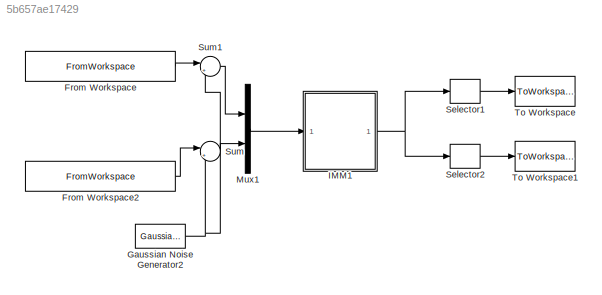
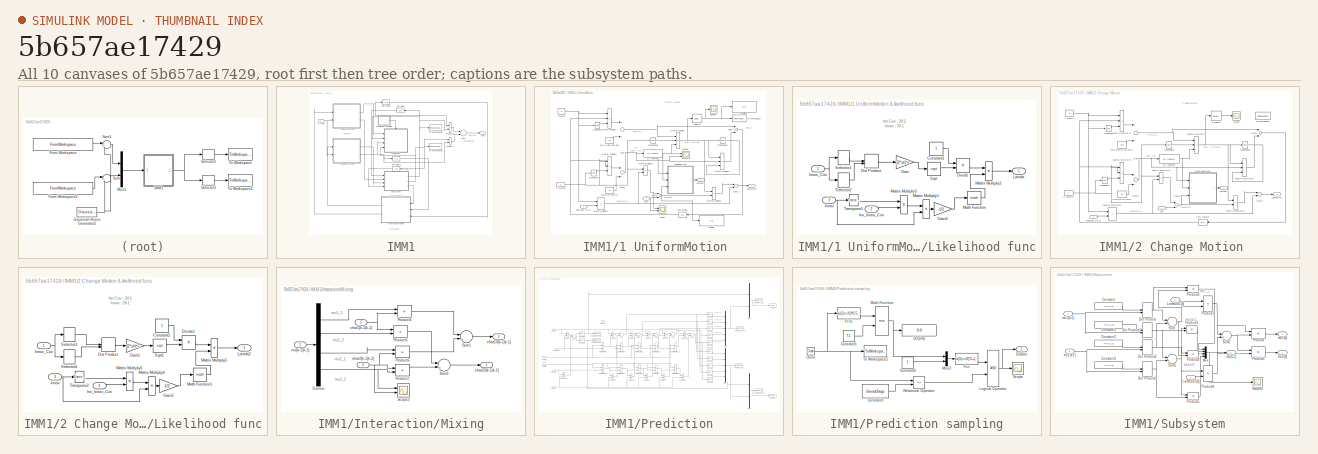
[diagram: thumbnail index - all 10 canvases of the model, root first then tree order]
MODEL slx_5b657ae17429
KIND model
BLOCK [FromWorkspace] From Workspace
  SampleTime = 0
  VariableName = [obv_traj1(:,1),obv_traj1(:,2)]
BLOCK [FromWorkspace] From Workspace2
  SampleTime = 0
  VariableName = [obv_traj1(:,1),obv_traj1(:,3)]
BLOCK [Reference] Gaussian Noise Generator2  REF=commnoisgen2/Gaussian Noise
Generator
  Ports = [0, 1]
  SourceBlock = commnoisgen2/Gaussian Noise\nGenerator
  SourceType = Gaussian Noise Generator
  Ts = 0.05
  d = noise
  frameBased = off
  m = 0
  orient = off
  outDataType = double
  s = 0
  sampPerFrame = 1
BLOCK [SubSystem] IMM1
  FunctionWithSeparateData = off
  MaskHideContents = off
  MinAlgLoopOccurrences = off
  Opaque = off
  Ports = [1, 1]
  PropExecContextOutsideSubsystem = off
  RTWSystemCode = Auto
  RequestExecContextInheritance = off
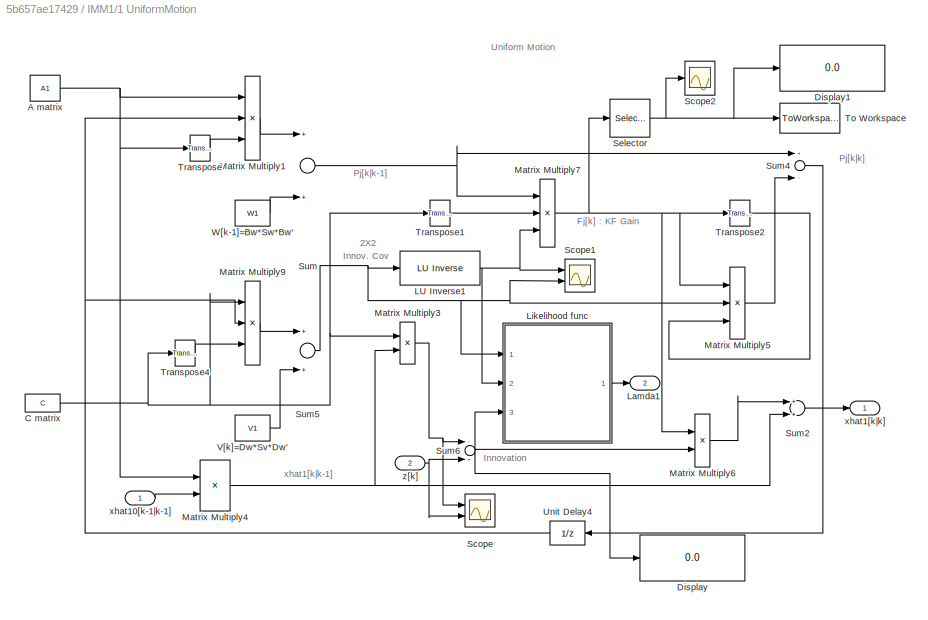
BLOCK [SubSystem] IMM1/1 UniformMotion 
  FunctionWithSeparateData = off
  MaskHideContents = off
  MinAlgLoopOccurrences = off
  Opaque = off
  Ports = [2, 2]
  PropExecContextOutsideSubsystem = off
  RTWSystemCode = Auto
  RequestExecContextInheritance = off
BLOCK [Reference] IMM1/1 UniformMotion / LU Inverse1  REF=dspinverses/ LU Inverse
  Ports = [1, 1]
  SourceBlock = dspinverses/ LU Inverse
  SourceType = LU Inverse
BLOCK [Constant] IMM1/1 UniformMotion /A matrix
  Value = A1
BLOCK [Constant] IMM1/1 UniformMotion /C matrix
  Value = C
BLOCK [Display] IMM1/1 UniformMotion /Display
  Decimation = 1
  Lockdown = off
  Ports = [1]
BLOCK [Display] IMM1/1 UniformMotion /Display1
  Decimation = 1
  Lockdown = off
  Ports = [1]
BLOCK [Outport] IMM1/1 UniformMotion /Lamda1
  IconDisplay = Port number
  Port = 2
BLOCK [SubSystem] IMM1/1 UniformMotion /Likelihood func
  FunctionWithSeparateData = off
  MaskHideContents = off
  MinAlgLoopOccurrences = off
  Opaque = off
  Ports = [3, 1]
  PropExecContextOutsideSubsystem = off
  RTWSystemCode = Auto
  RequestExecContextInheritance = off
BLOCK [Constant] IMM1/1 UniformMotion /Likelihood func/Constant1
BLOCK [Product] IMM1/1 UniformMotion /Likelihood func/Divide
  InputSameDT = off
  Inputs = */
  OutDataTypeStr = Inherit: Inherit via internal rule
  Ports = [2, 1]
  RndMeth = Floor
  SaturateOnIntegerOverflow = off
BLOCK [DotProduct] IMM1/1 UniformMotion /Likelihood func/Dot Product
  OutDataTypeStr = Inherit: Inherit via internal rule
BLOCK [Gain] IMM1/1 UniformMotion /Likelihood func/Gain
  Gain = (2*pi)^2
  OutDataTypeStr = Inherit: Inherit via internal rule
  ParamDataTypeStr = Inherit: Inherit via internal rule
  SaturateOnIntegerOverflow = off
BLOCK [Gain] IMM1/1 UniformMotion /Likelihood func/Gain2
  Gain = -1/2
  OutDataTypeStr = Inherit: Inherit via internal rule
  ParamDataTypeStr = Inherit: Inherit via internal rule
  SaturateOnIntegerOverflow = off
BLOCK [Inport] IMM1/1 UniformMotion /Likelihood func/Innov
  IconDisplay = Port number
  Port = 3
BLOCK [Inport] IMM1/1 UniformMotion /Likelihood func/Innov_Cov
  IconDisplay = Port number
BLOCK [Inport] IMM1/1 UniformMotion /Likelihood func/Inv_Innov_Cov
  IconDisplay = Port number
  Port = 2
BLOCK [Outport] IMM1/1 UniformMotion /Likelihood func/Lamda
  IconDisplay = Port number
BLOCK [Math] IMM1/1 UniformMotion /Likelihood func/Math Function
  Ports = [1, 1]
BLOCK [Product] IMM1/1 UniformMotion /Likelihood func/Matrix Multiply1
  InputSameDT = off
  Multiplication = Matrix(*)
  OutDataTypeStr = Inherit: Inherit via internal rule
  Ports = [2, 1]
  RndMeth = Floor
  SaturateOnIntegerOverflow = off
BLOCK [Product] IMM1/1 UniformMotion /Likelihood func/Matrix Multiply2
  InputSameDT = off
  Multiplication = Matrix(*)
  OutDataTypeStr = Inherit: Inherit via internal rule
  Ports = [2, 1]
  RndMeth = Floor
  SaturateOnIntegerOverflow = off
BLOCK [Product] IMM1/1 UniformMotion /Likelihood func/Matrix Multiply3
  InputSameDT = off
  Multiplication = Matrix(*)
  OutDataTypeStr = Inherit: Inherit via internal rule
  Ports = [2, 1]
  RndMeth = Floor
  SaturateOnIntegerOverflow = off
BLOCK [Selector] IMM1/1 UniformMotion /Likelihood func/Selector1
  IndexOptions = Index vector (dialog),Index vector (dialog)
  Indices = [1],[1]
  InputPortWidth = 4
  NumberOfDimensions = 2
  OutputSizes = 1,1
  Ports = [1, 1]
BLOCK [Selector] IMM1/1 UniformMotion /Likelihood func/Selector2
  IndexOptions = Index vector (dialog),Index vector (dialog)
  Indices = [2],[2]
  InputPortWidth = 4
  NumberOfDimensions = 2
  OutputSizes = 1,1
  Ports = [1, 1]
BLOCK [Sqrt] IMM1/1 UniformMotion /Likelihood func/Sqrt
BLOCK [Reference] IMM1/1 UniformMotion /Likelihood func/Transpose1  REF=dspmtrx3/Transpose
  Hermitian = off
  Ports = [1, 1]
  SourceBlock = dspmtrx3/Transpose
  SourceType = Transpose
  overflowFlag = off
BLOCK [Product] IMM1/1 UniformMotion /Matrix Multiply1
  InputSameDT = off
  Inputs = 3
  Multiplication = Matrix(*)
  OutDataTypeStr = Inherit: Inherit via internal rule
  Ports = [3, 1]
  RndMeth = Floor
  SaturateOnIntegerOverflow = off
BLOCK [Product] IMM1/1 UniformMotion /Matrix Multiply3
  InputSameDT = off
  Multiplication = Matrix(*)
  OutDataTypeStr = Inherit: Inherit via internal rule
  Ports = [2, 1]
  RndMeth = Floor
  SaturateOnIntegerOverflow = off
BLOCK [Product] IMM1/1 UniformMotion /Matrix Multiply4
  InputSameDT = off
  Multiplication = Matrix(*)
  OutDataTypeStr = Inherit: Inherit via internal rule
  Ports = [2, 1]
  RndMeth = Floor
  SaturateOnIntegerOverflow = off
BLOCK [Product] IMM1/1 UniformMotion /Matrix Multiply5
  InputSameDT = off
  Inputs = 3
  Multiplication = Matrix(*)
  OutDataTypeStr = Inherit: Inherit via internal rule
  Ports = [3, 1]
  RndMeth = Floor
  SaturateOnIntegerOverflow = off
BLOCK [Product] IMM1/1 UniformMotion /Matrix Multiply6
  InputSameDT = off
  Multiplication = Matrix(*)
  OutDataTypeStr = Inherit: Inherit via internal rule
  Ports = [2, 1]
  RndMeth = Floor
  SaturateOnIntegerOverflow = off
BLOCK [Product] IMM1/1 UniformMotion /Matrix Multiply7
  InputSameDT = off
  Inputs = 3
  Multiplication = Matrix(*)
  OutDataTypeStr = Inherit: Inherit via internal rule
  Ports = [3, 1]
  RndMeth = Floor
  SaturateOnIntegerOverflow = off
BLOCK [Product] IMM1/1 UniformMotion /Matrix Multiply9
  InputSameDT = off
  Inputs = 3
  Multiplication = Matrix(*)
  OutDataTypeStr = Inherit: Inherit via internal rule
  Ports = [3, 1]
  RndMeth = Floor
  SaturateOnIntegerOverflow = off
BLOCK [Scope] IMM1/1 UniformMotion /Scope
  DataFormat = StructureWithTime
  Floating = off
  NumInputPorts = 2
  Ports = [2]
  SampleTime = 0
  SaveName = ScopeData10
  ShowLegends = off
  YMax = 5~20
  YMin = -5~5
BLOCK [Scope] IMM1/1 UniformMotion /Scope1
  DataFormat = StructureWithTime
  Floating = off
  NumInputPorts = 2
  Ports = [2]
  SampleTime = 0
  SaveName = ScopeData11
  ShowLegends = off
  YMax = 0.0015~3e+301
  YMin = -0.00025~-5e+300
BLOCK [Scope] IMM1/1 UniformMotion /Scope2
  DataFormat = StructureWithTime
  Floating = off
  NumInputPorts = 1
  Ports = [1]
  SampleTime = 0
  SaveName = ScopeData4
  ShowLegends = off
BLOCK [Selector] IMM1/1 UniformMotion /Selector
  IndexOptions = Index vector (dialog),Index vector (dialog)
  Indices = 1,1
  InputPortWidth = 3
  NumberOfDimensions = 2
  OutputSizes = 1,1
  Ports = [1, 1]
BLOCK [Sum] IMM1/1 UniformMotion /Sum
  InputSameDT = off
  OutDataTypeStr = Inherit: Inherit via internal rule
  Ports = [2, 1]
BLOCK [Sum] IMM1/1 UniformMotion /Sum2
  InputSameDT = off
  OutDataTypeStr = Inherit: Inherit via internal rule
  Ports = [2, 1]
BLOCK [Sum] IMM1/1 UniformMotion /Sum4
  InputSameDT = off
  Inputs = +-
  OutDataTypeStr = Inherit: Inherit via internal rule
  Ports = [2, 1]
BLOCK [Sum] IMM1/1 UniformMotion /Sum5
  InputSameDT = off
  OutDataTypeStr = Inherit: Inherit via internal rule
  Ports = [2, 1]
BLOCK [Sum] IMM1/1 UniformMotion /Sum6
  InputSameDT = off
  Inputs = -+
  OutDataTypeStr = Inherit: Inherit via internal rule
  Ports = [2, 1]
BLOCK [ToWorkspace] IMM1/1 UniformMotion /To Workspace
  MaxDataPoints = inf
  Ports = [1]
  SampleTime = -1
  VariableName = KFgain1
BLOCK [Reference] IMM1/1 UniformMotion /Transpose  REF=dspmtrx3/Transpose
  Hermitian = off
  Ports = [1, 1]
  SourceBlock = dspmtrx3/Transpose
  SourceType = Transpose
  overflowFlag = off
BLOCK [Reference] IMM1/1 UniformMotion /Transpose1  REF=dspmtrx3/Transpose
  Hermitian = off
  Ports = [1, 1]
  SourceBlock = dspmtrx3/Transpose
  SourceType = Transpose
  overflowFlag = off
BLOCK [Reference] IMM1/1 UniformMotion /Transpose2  REF=dspmtrx3/Transpose
  Hermitian = off
  Ports = [1, 1]
  SourceBlock = dspmtrx3/Transpose
  SourceType = Transpose
  overflowFlag = off
BLOCK [Reference] IMM1/1 UniformMotion /Transpose4  REF=dspmtrx3/Transpose
  Hermitian = off
  Ports = [1, 1]
  SourceBlock = dspmtrx3/Transpose
  SourceType = Transpose
  overflowFlag = off
BLOCK [UnitDelay] IMM1/1 UniformMotion /Unit Delay4
  InitialCondition = P_init
  SampleTime = -1
BLOCK [Constant] IMM1/1 UniformMotion /V[k]=Dw*Sv*Dw'
  Value = V1
BLOCK [Constant] IMM1/1 UniformMotion /W[k-1]=Bw*Sw*Bw' 
  Value = W1
BLOCK [Inport] IMM1/1 UniformMotion /xhat10[k-1|k-1]
  IconDisplay = Port number
BLOCK [Outport] IMM1/1 UniformMotion /xhat1[k|k]
  IconDisplay = Port number
BLOCK [Inport] IMM1/1 UniformMotion /z[k]
  IconDisplay = Port number
  Port = 2
BLOCK [SubSystem] IMM1/2 Change Motion 
  FunctionWithSeparateData = off
  MaskHideContents = off
  MinAlgLoopOccurrences = off
  Opaque = off
  Ports = [2, 2]
  PropExecContextOutsideSubsystem = off
  RTWSystemCode = Auto
  RequestExecContextInheritance = off
BLOCK [Reference] IMM1/2 Change Motion / LU Inverse1  REF=dspinverses/ LU Inverse
  Ports = [1, 1]
  SourceBlock = dspinverses/ LU Inverse
  SourceType = LU Inverse
BLOCK [Constant] IMM1/2 Change Motion /A matrix
  Value = A2
BLOCK [Constant] IMM1/2 Change Motion /C matrix
  Value = C
BLOCK [Outport] IMM1/2 Change Motion /Lamda2
  IconDisplay = Port number
BLOCK [SubSystem] IMM1/2 Change Motion /Likelihood func
  FunctionWithSeparateData = off
  MaskHideContents = off
  MinAlgLoopOccurrences = off
  Opaque = off
  Ports = [3, 1]
  PropExecContextOutsideSubsystem = off
  RTWSystemCode = Auto
  RequestExecContextInheritance = off
BLOCK [Constant] IMM1/2 Change Motion /Likelihood func/Constant2
BLOCK [Product] IMM1/2 Change Motion /Likelihood func/Divide1
  InputSameDT = off
  Inputs = */
  OutDataTypeStr = Inherit: Inherit via internal rule
  Ports = [2, 1]
  RndMeth = Floor
  SaturateOnIntegerOverflow = off
BLOCK [DotProduct] IMM1/2 Change Motion /Likelihood func/Dot Product
  OutDataTypeStr = Inherit: Inherit via internal rule
BLOCK [Gain] IMM1/2 Change Motion /Likelihood func/Gain1
  Gain = (2*pi)^2
  OutDataTypeStr = Inherit: Inherit via internal rule
  ParamDataTypeStr = Inherit: Inherit via internal rule
  SaturateOnIntegerOverflow = off
BLOCK [Gain] IMM1/2 Change Motion /Likelihood func/Gain3
  Gain = -1/2
  OutDataTypeStr = Inherit: Inherit via internal rule
  ParamDataTypeStr = Inherit: Inherit via internal rule
  SaturateOnIntegerOverflow = off
BLOCK [Inport] IMM1/2 Change Motion /Likelihood func/Innov
  IconDisplay = Port number
  Port = 3
BLOCK [Inport] IMM1/2 Change Motion /Likelihood func/Innov_Cov
  IconDisplay = Port number
BLOCK [Inport] IMM1/2 Change Motion /Likelihood func/Inv_Innov_Cov
  IconDisplay = Port number
  Port = 2
BLOCK [Outport] IMM1/2 Change Motion /Likelihood func/Lamda2
  IconDisplay = Port number
BLOCK [Math] IMM1/2 Change Motion /Likelihood func/Math Function1
  Ports = [1, 1]
BLOCK [Product] IMM1/2 Change Motion /Likelihood func/Matrix Multiply4
  InputSameDT = off
  Multiplication = Matrix(*)
  OutDataTypeStr = Inherit: Inherit via internal rule
  Ports = [2, 1]
  RndMeth = Floor
  SaturateOnIntegerOverflow = off
BLOCK [Product] IMM1/2 Change Motion /Likelihood func/Matrix Multiply5
  InputSameDT = off
  Multiplication = Matrix(*)
  OutDataTypeStr = Inherit: Inherit via internal rule
  Ports = [2, 1]
  RndMeth = Floor
  SaturateOnIntegerOverflow = off
BLOCK [Product] IMM1/2 Change Motion /Likelihood func/Matrix Multiply6
  InputSameDT = off
  Multiplication = Matrix(*)
  OutDataTypeStr = Inherit: Inherit via internal rule
  Ports = [2, 1]
  RndMeth = Floor
  SaturateOnIntegerOverflow = off
BLOCK [Selector] IMM1/2 Change Motion /Likelihood func/Selector3
  IndexOptions = Index vector (dialog),Index vector (dialog)
  Indices = [1],[1]
  InputPortWidth = 4
  NumberOfDimensions = 2
  OutputSizes = 1,1
  Ports = [1, 1]
BLOCK [Selector] IMM1/2 Change Motion /Likelihood func/Selector4
  IndexOptions = Index vector (dialog),Index vector (dialog)
  Indices = [2],[2]
  InputPortWidth = 4
  NumberOfDimensions = 2
  OutputSizes = 1,1
  Ports = [1, 1]
BLOCK [Sqrt] IMM1/2 Change Motion /Likelihood func/Sqrt1
BLOCK [Reference] IMM1/2 Change Motion /Likelihood func/Transpose2  REF=dspmtrx3/Transpose
  Hermitian = off
  Ports = [1, 1]
  SourceBlock = dspmtrx3/Transpose
  SourceType = Transpose
  overflowFlag = off
BLOCK [Product] IMM1/2 Change Motion /Matrix Multiply1
  InputSameDT = off
  Inputs = 3
  Multiplication = Matrix(*)
  OutDataTypeStr = Inherit: Inherit via internal rule
  Ports = [3, 1]
  RndMeth = Floor
  SaturateOnIntegerOverflow = off
BLOCK [Product] IMM1/2 Change Motion /Matrix Multiply3
  InputSameDT = off
  Multiplication = Matrix(*)
  OutDataTypeStr = Inherit: Inherit via internal rule
  Ports = [2, 1]
  RndMeth = Floor
  SaturateOnIntegerOverflow = off
BLOCK [Product] IMM1/2 Change Motion /Matrix Multiply4
  InputSameDT = off
  Multiplication = Matrix(*)
  OutDataTypeStr = Inherit: Inherit via internal rule
  Ports = [2, 1]
  RndMeth = Floor
  SaturateOnIntegerOverflow = off
BLOCK [Product] IMM1/2 Change Motion /Matrix Multiply5
  InputSameDT = off
  Inputs = 3
  Multiplication = Matrix(*)
  OutDataTypeStr = Inherit: Inherit via internal rule
  Ports = [3, 1]
  RndMeth = Floor
  SaturateOnIntegerOverflow = off
BLOCK [Product] IMM1/2 Change Motion /Matrix Multiply6
  InputSameDT = off
  Multiplication = Matrix(*)
  OutDataTypeStr = Inherit: Inherit via internal rule
  Ports = [2, 1]
  RndMeth = Floor
  SaturateOnIntegerOverflow = off
BLOCK [Product] IMM1/2 Change Motion /Matrix Multiply7
  InputSameDT = off
  Inputs = 3
  Multiplication = Matrix(*)
  OutDataTypeStr = Inherit: Inherit via internal rule
  Ports = [3, 1]
  RndMeth = Floor
  SaturateOnIntegerOverflow = off
BLOCK [Product] IMM1/2 Change Motion /Matrix Multiply9
  InputSameDT = off
  Inputs = 3
  Multiplication = Matrix(*)
  OutDataTypeStr = Inherit: Inherit via internal rule
  Ports = [3, 1]
  RndMeth = Floor
  SaturateOnIntegerOverflow = off
BLOCK [Scope] IMM1/2 Change Motion /Scope
  DataFormat = StructureWithTime
  Floating = off
  NumInputPorts = 1
  Ports = [1]
  SampleTime = 0
  SaveName = ScopeData3
  ShowLegends = off
BLOCK [Selector] IMM1/2 Change Motion /Selector
  IndexOptions = Index vector (dialog),Index vector (dialog)
  Indices = 1,1
  InputPortWidth = 3
  NumberOfDimensions = 2
  OutputSizes = 1,1
  Ports = [1, 1]
BLOCK [Sum] IMM1/2 Change Motion /Sum
  InputSameDT = off
  OutDataTypeStr = Inherit: Inherit via internal rule
  Ports = [2, 1]
BLOCK [Sum] IMM1/2 Change Motion /Sum2
  InputSameDT = off
  OutDataTypeStr = Inherit: Inherit via internal rule
  Ports = [2, 1]
BLOCK [Sum] IMM1/2 Change Motion /Sum4
  InputSameDT = off
  Inputs = +-
  OutDataTypeStr = Inherit: Inherit via internal rule
  Ports = [2, 1]
BLOCK [Sum] IMM1/2 Change Motion /Sum5
  InputSameDT = off
  OutDataTypeStr = Inherit: Inherit via internal rule
  Ports = [2, 1]
BLOCK [Sum] IMM1/2 Change Motion /Sum6
  InputSameDT = off
  Inputs = -+
  OutDataTypeStr = Inherit: Inherit via internal rule
  Ports = [2, 1]
BLOCK [ToWorkspace] IMM1/2 Change Motion /To Workspace
  MaxDataPoints = inf
  Ports = [1]
  SampleTime = -1
  VariableName = KFgain2
BLOCK [Reference] IMM1/2 Change Motion /Transpose  REF=dspmtrx3/Transpose
  Hermitian = off
  Ports = [1, 1]
  SourceBlock = dspmtrx3/Transpose
  SourceType = Transpose
  overflowFlag = off
BLOCK [Reference] IMM1/2 Change Motion /Transpose1  REF=dspmtrx3/Transpose
  Hermitian = off
  Ports = [1, 1]
  SourceBlock = dspmtrx3/Transpose
  SourceType = Transpose
  overflowFlag = off
BLOCK [Reference] IMM1/2 Change Motion /Transpose2  REF=dspmtrx3/Transpose
  Hermitian = off
  Ports = [1, 1]
  SourceBlock = dspmtrx3/Transpose
  SourceType = Transpose
  overflowFlag = off
BLOCK [Reference] IMM1/2 Change Motion /Transpose4  REF=dspmtrx3/Transpose
  Hermitian = off
  Ports = [1, 1]
  SourceBlock = dspmtrx3/Transpose
  SourceType = Transpose
  overflowFlag = off
BLOCK [UnitDelay] IMM1/2 Change Motion /Unit Delay4
  InitialCondition = P_init
  SampleTime = -1
BLOCK [Constant] IMM1/2 Change Motion /V[k]=Dw*Sv*Dw'
  Value = V2
BLOCK [Constant] IMM1/2 Change Motion /W[k-1]=Bw*Sw*Bw' 
  Value = W2
BLOCK [Inport] IMM1/2 Change Motion /xhat20[k-1|k-1]
  IconDisplay = Port number
BLOCK [Outport] IMM1/2 Change Motion /xhat2[k|k]
  IconDisplay = Port number
  Port = 2
BLOCK [Inport] IMM1/2 Change Motion /z[k]
  IconDisplay = Port number
  Port = 2
BLOCK [SubSystem] IMM1/Interaction//Mixing
  FunctionWithSeparateData = off
  MaskHideContents = off
  MinAlgLoopOccurrences = off
  Opaque = off
  Ports = [3, 2]
  PropExecContextOutsideSubsystem = off
  RTWSystemCode = Auto
  RequestExecContextInheritance = off
BLOCK [Demux] IMM1/Interaction//Mixing/Demux
  Ports = [1, 4]
BLOCK [Product] IMM1/Interaction//Mixing/Product4
  InputSameDT = off
  Ports = [2, 1]
  RndMeth = Floor
BLOCK [Product] IMM1/Interaction//Mixing/Product5
  InputSameDT = off
  Ports = [2, 1]
  RndMeth = Floor
BLOCK [Product] IMM1/Interaction//Mixing/Product6
  InputSameDT = off
  Ports = [2, 1]
  RndMeth = Floor
BLOCK [Product] IMM1/Interaction//Mixing/Product7
  InputSameDT = off
  Ports = [2, 1]
  RndMeth = Floor
BLOCK [Scope] IMM1/Interaction//Mixing/Scope3
  DataFormat = StructureWithTime
  Floating = off
  NumInputPorts = 2
  Ports = [2]
  SampleTime = 0
  SaveName = ScopeData7
  ShowLegends = off
  TimeRange = 10
  YMax = 5~5
  YMin = -5~-5
BLOCK [Sum] IMM1/Interaction//Mixing/Sum1
  IconShape = round
  InputSameDT = off
  Inputs = |++|
  OutDataTypeStr = Inherit: Inherit via internal rule
  Ports = [2, 1]
BLOCK [Sum] IMM1/Interaction//Mixing/Sum2
  IconShape = round
  InputSameDT = off
  Inputs = |++|
  OutDataTypeStr = Inherit: Inherit via internal rule
  Ports = [2, 1]
BLOCK [Inport] IMM1/Interaction//Mixing/mu[k-1|k-1]
  IconDisplay = Port number
BLOCK [Outport] IMM1/Interaction//Mixing/xhat10[k-1|k-1]
  IconDisplay = Port number
  Port = 2
BLOCK [Inport] IMM1/Interaction//Mixing/xhat1[k-1|k-1]
  IconDisplay = Port number
  Port = 3
BLOCK [Outport] IMM1/Interaction//Mixing/xhat20[k-1|k-1]
  IconDisplay = Port number
BLOCK [Inport] IMM1/Interaction//Mixing/xhat2[k-1|k-1]
  IconDisplay = Port number
  Port = 2
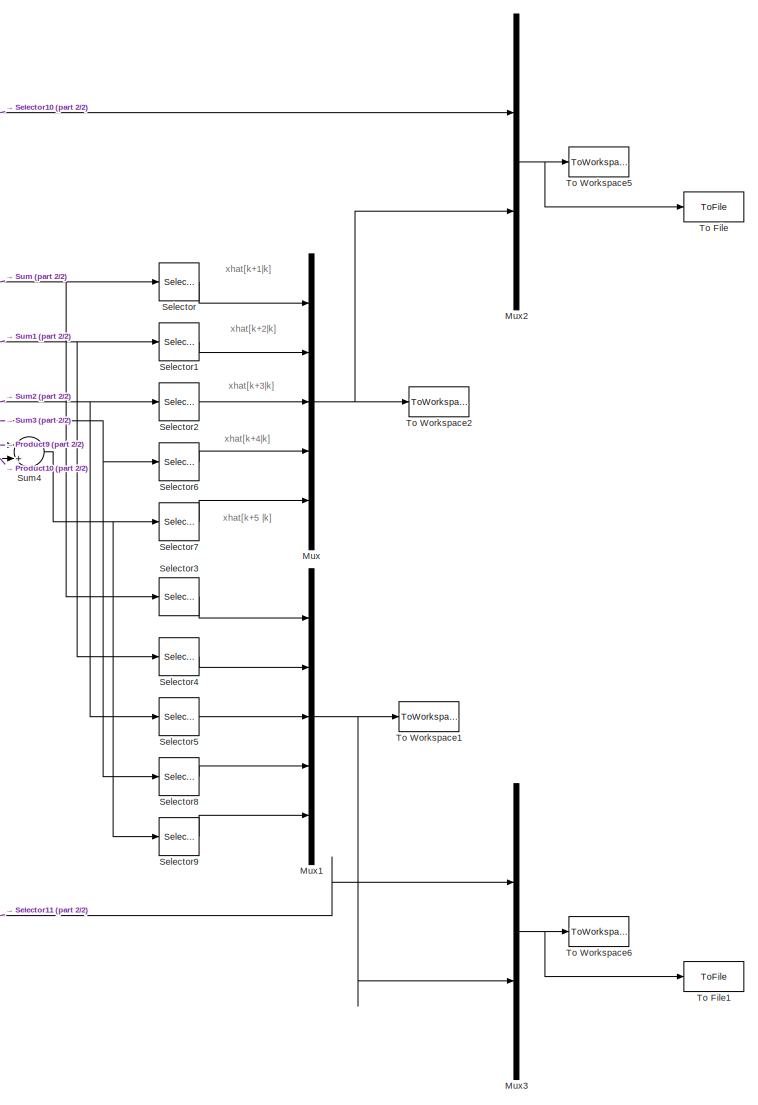
[diagram: IMM1/Prediction - part 1/2, right side, full height]
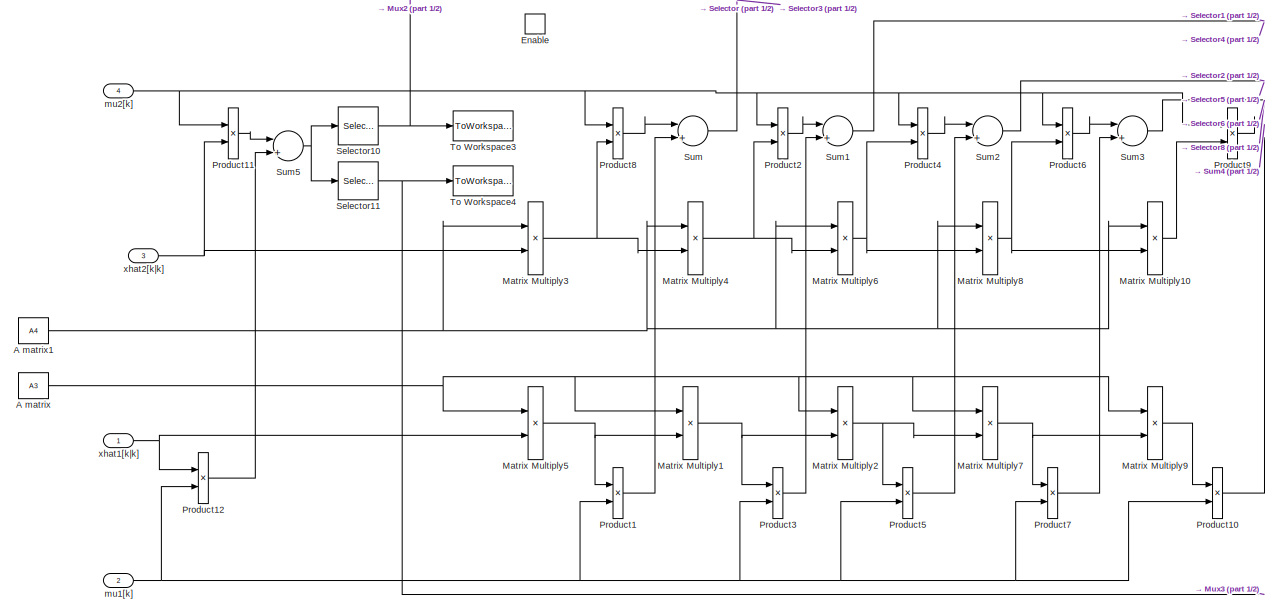
[diagram: IMM1/Prediction - part 2/2, middle left region]
BLOCK [SubSystem] IMM1/Prediction
  FunctionWithSeparateData = off
  MaskHideContents = off
  MinAlgLoopOccurrences = off
  Opaque = off
  Ports = [4, 0, 1]
  PropExecContextOutsideSubsystem = off
  RTWSystemCode = Auto
  RequestExecContextInheritance = off
BLOCK [SubSystem] IMM1/Prediction sampling
  FunctionWithSeparateData = off
  MaskHideContents = off
  MinAlgLoopOccurrences = off
  Opaque = off
  Ports = [0, 1]
  PropExecContextOutsideSubsystem = off
  RTWSystemCode = Auto
  RequestExecContextInheritance = off
BLOCK [Clock] IMM1/Prediction sampling/Clock
BLOCK [Constant] IMM1/Prediction sampling/Constant1
  Value = T1
BLOCK [Constant] IMM1/Prediction sampling/Constant3
  Value = SimulStop
BLOCK [Constant] IMM1/Prediction sampling/Constant4
BLOCK [Display] IMM1/Prediction sampling/Display
  Decimation = 1
  Lockdown = off
  Ports = [1]
BLOCK [Outport] IMM1/Prediction sampling/Enable
  IconDisplay = Port number
BLOCK [Fcn] IMM1/Prediction sampling/Fcn
  Expr = (u(1)==0)*1+(!u(1)==0)*0
BLOCK [Fcn] IMM1/Prediction sampling/Fcn1
  Expr = (u(1)==0)*0.5+(!u(1)==0)*u(1)
BLOCK [Logic] IMM1/Prediction sampling/Logical Operator
  AllPortsSameDT = off
  OutDataTypeStr = boolean
  Ports = [2, 1]
BLOCK [Math] IMM1/Prediction sampling/Math Function
  Operator = rem
  Ports = [2, 1]
BLOCK [Mux] IMM1/Prediction sampling/Mux2
  DisplayOption = bar
  Inputs = 2
  Ports = [2, 1]
BLOCK [RelationalOperator] IMM1/Prediction sampling/Relational Operator
  InputSameDT = off
  Operator = <=
  OutDataTypeStr = boolean
  Ports = [2, 1]
BLOCK [Scope] IMM1/Prediction sampling/Scope
  DataFormat = StructureWithTime
  Floating = off
  NumInputPorts = 1
  Ports = [1]
  SampleTime = 0
  SaveName = ScopeData2
  ShowLegends = off
BLOCK [ToWorkspace] IMM1/Prediction sampling/To Workspace2
  MaxDataPoints = inf
  Ports = [1]
  SampleTime = -1
  VariableName = time
BLOCK [Constant] IMM1/Prediction/A matrix
  Value = A3
BLOCK [Constant] IMM1/Prediction/A matrix1
  Value = A4
BLOCK [EnablePort] IMM1/Prediction/Enable
  Ports = []
BLOCK [Product] IMM1/Prediction/Matrix Multiply1
  InputSameDT = off
  Multiplication = Matrix(*)
  OutDataTypeStr = Inherit: Inherit via internal rule
  Ports = [2, 1]
  RndMeth = Floor
  SaturateOnIntegerOverflow = off
BLOCK [Product] IMM1/Prediction/Matrix Multiply10
  InputSameDT = off
  Multiplication = Matrix(*)
  OutDataTypeStr = Inherit: Inherit via internal rule
  Ports = [2, 1]
  RndMeth = Floor
  SaturateOnIntegerOverflow = off
BLOCK [Product] IMM1/Prediction/Matrix Multiply2
  InputSameDT = off
  Multiplication = Matrix(*)
  OutDataTypeStr = Inherit: Inherit via internal rule
  Ports = [2, 1]
  RndMeth = Floor
  SaturateOnIntegerOverflow = off
BLOCK [Product] IMM1/Prediction/Matrix Multiply3
  InputSameDT = off
  Multiplication = Matrix(*)
  OutDataTypeStr = Inherit: Inherit via internal rule
  Ports = [2, 1]
  RndMeth = Floor
  SaturateOnIntegerOverflow = off
BLOCK [Product] IMM1/Prediction/Matrix Multiply4
  InputSameDT = off
  Multiplication = Matrix(*)
  OutDataTypeStr = Inherit: Inherit via internal rule
  Ports = [2, 1]
  RndMeth = Floor
  SaturateOnIntegerOverflow = off
BLOCK [Product] IMM1/Prediction/Matrix Multiply5
  InputSameDT = off
  Multiplication = Matrix(*)
  OutDataTypeStr = Inherit: Inherit via internal rule
  Ports = [2, 1]
  RndMeth = Floor
  SaturateOnIntegerOverflow = off
BLOCK [Product] IMM1/Prediction/Matrix Multiply6
  InputSameDT = off
  Multiplication = Matrix(*)
  OutDataTypeStr = Inherit: Inherit via internal rule
  Ports = [2, 1]
  RndMeth = Floor
  SaturateOnIntegerOverflow = off
BLOCK [Product] IMM1/Prediction/Matrix Multiply7
  InputSameDT = off
  Multiplication = Matrix(*)
  OutDataTypeStr = Inherit: Inherit via internal rule
  Ports = [2, 1]
  RndMeth = Floor
  SaturateOnIntegerOverflow = off
BLOCK [Product] IMM1/Prediction/Matrix Multiply8
  InputSameDT = off
  Multiplication = Matrix(*)
  OutDataTypeStr = Inherit: Inherit via internal rule
  Ports = [2, 1]
  RndMeth = Floor
  SaturateOnIntegerOverflow = off
BLOCK [Product] IMM1/Prediction/Matrix Multiply9
  InputSameDT = off
  Multiplication = Matrix(*)
  OutDataTypeStr = Inherit: Inherit via internal rule
  Ports = [2, 1]
  RndMeth = Floor
  SaturateOnIntegerOverflow = off
BLOCK [Mux] IMM1/Prediction/Mux
  DisplayOption = bar
  Inputs = 5
  Ports = [5, 1]
BLOCK [Mux] IMM1/Prediction/Mux1
  DisplayOption = bar
  Inputs = 5
  Ports = [5, 1]
BLOCK [Mux] IMM1/Prediction/Mux2
  DisplayOption = bar
  Inputs = 2
  Ports = [2, 1]
BLOCK [Mux] IMM1/Prediction/Mux3
  DisplayOption = bar
  Inputs = 2
  Ports = [2, 1]
BLOCK [Product] IMM1/Prediction/Product1
  InputSameDT = off
  Ports = [2, 1]
  RndMeth = Floor
BLOCK [Product] IMM1/Prediction/Product10
  InputSameDT = off
  Ports = [2, 1]
  RndMeth = Floor
BLOCK [Product] IMM1/Prediction/Product11
  InputSameDT = off
  Ports = [2, 1]
  RndMeth = Floor
BLOCK [Product] IMM1/Prediction/Product12
  InputSameDT = off
  Ports = [2, 1]
  RndMeth = Floor
BLOCK [Product] IMM1/Prediction/Product2
  InputSameDT = off
  Ports = [2, 1]
  RndMeth = Floor
BLOCK [Product] IMM1/Prediction/Product3
  InputSameDT = off
  Ports = [2, 1]
  RndMeth = Floor
BLOCK [Product] IMM1/Prediction/Product4
  InputSameDT = off
  Ports = [2, 1]
  RndMeth = Floor
BLOCK [Product] IMM1/Prediction/Product5
  InputSameDT = off
  Ports = [2, 1]
  RndMeth = Floor
BLOCK [Product] IMM1/Prediction/Product6
  InputSameDT = off
  Ports = [2, 1]
  RndMeth = Floor
BLOCK [Product] IMM1/Prediction/Product7
  InputSameDT = off
  Ports = [2, 1]
  RndMeth = Floor
BLOCK [Product] IMM1/Prediction/Product8
  InputSameDT = off
  Ports = [2, 1]
  RndMeth = Floor
BLOCK [Product] IMM1/Prediction/Product9
  InputSameDT = off
  Ports = [2, 1]
  RndMeth = Floor
BLOCK [Selector] IMM1/Prediction/Selector
  IndexOptions = Index vector (dialog)
  Indices = [1]
  InputPortWidth = 4
  OutputSizes = 1
  Ports = [1, 1]
BLOCK [Selector] IMM1/Prediction/Selector1
  IndexOptions = Index vector (dialog)
  Indices = [1]
  InputPortWidth = 4
  OutputSizes = 1
  Ports = [1, 1]
BLOCK [Selector] IMM1/Prediction/Selector10
  IndexOptions = Index vector (dialog)
  Indices = [1]
  InputPortWidth = 4
  OutputSizes = 1
  Ports = [1, 1]
BLOCK [Selector] IMM1/Prediction/Selector11
  IndexOptions = Index vector (dialog)
  Indices = [3]
  InputPortWidth = 4
  OutputSizes = 1
  Ports = [1, 1]
BLOCK [Selector] IMM1/Prediction/Selector2
  IndexOptions = Index vector (dialog)
  Indices = [1]
  InputPortWidth = 4
  OutputSizes = 1
  Ports = [1, 1]
BLOCK [Selector] IMM1/Prediction/Selector3
  IndexOptions = Index vector (dialog)
  Indices = [3]
  InputPortWidth = 4
  OutputSizes = 1
  Ports = [1, 1]
BLOCK [Selector] IMM1/Prediction/Selector4
  IndexOptions = Index vector (dialog)
  Indices = [3]
  InputPortWidth = 4
  OutputSizes = 1
  Ports = [1, 1]
BLOCK [Selector] IMM1/Prediction/Selector5
  IndexOptions = Index vector (dialog)
  Indices = [3]
  InputPortWidth = 4
  OutputSizes = 1
  Ports = [1, 1]
BLOCK [Selector] IMM1/Prediction/Selector6
  IndexOptions = Index vector (dialog)
  Indices = [1]
  InputPortWidth = 4
  OutputSizes = 1
  Ports = [1, 1]
BLOCK [Selector] IMM1/Prediction/Selector7
  IndexOptions = Index vector (dialog)
  Indices = [1]
  InputPortWidth = 4
  OutputSizes = 1
  Ports = [1, 1]
BLOCK [Selector] IMM1/Prediction/Selector8
  IndexOptions = Index vector (dialog)
  Indices = [3]
  InputPortWidth = 4
  OutputSizes = 1
  Ports = [1, 1]
BLOCK [Selector] IMM1/Prediction/Selector9
  IndexOptions = Index vector (dialog)
  Indices = [3]
  InputPortWidth = 4
  OutputSizes = 1
  Ports = [1, 1]
BLOCK [Sum] IMM1/Prediction/Sum
  IconShape = round
  InputSameDT = off
  Inputs = |++|
  OutDataTypeStr = Inherit: Inherit via internal rule
  Ports = [2, 1]
BLOCK [Sum] IMM1/Prediction/Sum1
  IconShape = round
  InputSameDT = off
  Inputs = |++|
  OutDataTypeStr = Inherit: Inherit via internal rule
  Ports = [2, 1]
BLOCK [Sum] IMM1/Prediction/Sum2
  IconShape = round
  InputSameDT = off
  Inputs = |++|
  OutDataTypeStr = Inherit: Inherit via internal rule
  Ports = [2, 1]
BLOCK [Sum] IMM1/Prediction/Sum3
  IconShape = round
  InputSameDT = off
  Inputs = |++|
  OutDataTypeStr = Inherit: Inherit via internal rule
  Ports = [2, 1]
BLOCK [Sum] IMM1/Prediction/Sum4
  IconShape = round
  InputSameDT = off
  Inputs = |++|
  OutDataTypeStr = Inherit: Inherit via internal rule
  Ports = [2, 1]
BLOCK [Sum] IMM1/Prediction/Sum5
  IconShape = round
  InputSameDT = off
  Inputs = |++|
  OutDataTypeStr = Inherit: Inherit via internal rule
  Ports = [2, 1]
BLOCK [ToFile] IMM1/Prediction/To File
  Filename = x_pos_pre_imm.mat
  MatrixName = x_pos_pre_imm
  Ports = [1]
BLOCK [ToFile] IMM1/Prediction/To File1
  Filename = y_pos_pre_imm.mat
  MatrixName = y_pos_pre_imm
  Ports = [1]
BLOCK [ToWorkspace] IMM1/Prediction/To Workspace1
  MaxDataPoints = inf
  Ports = [1]
  SampleTime = -1
  VariableName = y_pos_pre
BLOCK [ToWorkspace] IMM1/Prediction/To Workspace2
  MaxDataPoints = inf
  Ports = [1]
  SampleTime = -1
  VariableName = x_pos_pre
BLOCK [ToWorkspace] IMM1/Prediction/To Workspace3
  MaxDataPoints = inf
  Ports = [1]
  SampleTime = -1
  VariableName = x_pos_est
BLOCK [ToWorkspace] IMM1/Prediction/To Workspace4
  MaxDataPoints = inf
  Ports = [1]
  SampleTime = -1
  VariableName = y_pos_est
BLOCK [ToWorkspace] IMM1/Prediction/To Workspace5
  MaxDataPoints = inf
  Ports = [1]
  SampleTime = -1
  VariableName = x_pos_pre1
BLOCK [ToWorkspace] IMM1/Prediction/To Workspace6
  MaxDataPoints = inf
  Ports = [1]
  SampleTime = -1
  VariableName = x_pos_pre2
BLOCK [Inport] IMM1/Prediction/mu1[k] 
  IconDisplay = Port number
  Port = 2
BLOCK [Inport] IMM1/Prediction/mu2[k]
  IconDisplay = Port number
  Port = 4
BLOCK [Inport] IMM1/Prediction/xhat1[k|k]
  IconDisplay = Port number
BLOCK [Inport] IMM1/Prediction/xhat2[k|k]
  IconDisplay = Port number
  Port = 3
BLOCK [Product] IMM1/Product1
  InputSameDT = off
  Ports = [2, 1]
  RndMeth = Floor
BLOCK [Product] IMM1/Product8
  InputSameDT = off
  Ports = [2, 1]
  RndMeth = Floor
BLOCK [SubSystem] IMM1/Subsystem
  FunctionWithSeparateData = off
  MaskHideContents = off
  MinAlgLoopOccurrences = off
  Opaque = off
  Ports = [4, 3]
  PropExecContextOutsideSubsystem = off
  RTWSystemCode = Auto
  RequestExecContextInheritance = off
BLOCK [Constant] IMM1/Subsystem/Constant
  Value = PHI(1,1)
BLOCK [Constant] IMM1/Subsystem/Constant1
  Value = PHI(1,2)
BLOCK [Constant] IMM1/Subsystem/Constant2
  Value = PHI(2,1)
BLOCK [Constant] IMM1/Subsystem/Constant3
  Value = PHI(2,2)
BLOCK [DotProduct] IMM1/Subsystem/Dot Product
  OutDataTypeStr = Inherit: Inherit via internal rule
BLOCK [DotProduct] IMM1/Subsystem/Dot Product1
  OutDataTypeStr = Inherit: Inherit via internal rule
BLOCK [DotProduct] IMM1/Subsystem/Dot Product2
  OutDataTypeStr = Inherit: Inherit via internal rule
BLOCK [DotProduct] IMM1/Subsystem/Dot Product3
  OutDataTypeStr = Inherit: Inherit via internal rule
BLOCK [Inport] IMM1/Subsystem/Lambda1[k]
  IconDisplay = Port number
  Port = 2
BLOCK [Inport] IMM1/Subsystem/Lambda2[k]
  IconDisplay = Port number
  Port = 3
BLOCK [Mux] IMM1/Subsystem/Mux
  DisplayOption = bar
  Ports = [4, 1]
BLOCK [Product] IMM1/Subsystem/Product
  InputSameDT = off
  Inputs = */
  Ports = [2, 1]
  RndMeth = Floor
BLOCK [Product] IMM1/Subsystem/Product1
  InputSameDT = off
  Inputs = /*
  Ports = [2, 1]
  RndMeth = Floor
BLOCK [Product] IMM1/Subsystem/Product2
  InputSameDT = off
  Inputs = */
  Ports = [2, 1]
  RndMeth = Floor
BLOCK [Product] IMM1/Subsystem/Product3
  InputSameDT = off
  Inputs = /*
  Ports = [2, 1]
  RndMeth = Floor
BLOCK [Product] IMM1/Subsystem/Product4
  InputSameDT = off
  Inputs = */
  Ports = [2, 1]
  RndMeth = Floor
BLOCK [Product] IMM1/Subsystem/Product5
  InputSameDT = off
  Inputs = /*
  Ports = [2, 1]
  RndMeth = Floor
BLOCK [Product] IMM1/Subsystem/Product6
  InputSameDT = off
  Ports = [2, 1]
  RndMeth = Floor
BLOCK [Product] IMM1/Subsystem/Product7
  InputSameDT = off
  Ports = [2, 1]
  RndMeth = Floor
BLOCK [Scope] IMM1/Subsystem/Scope4
  DataFormat = StructureWithTime
  Floating = off
  NumInputPorts = 1
  Ports = [1]
  SaveName = ScopeData31
  ShowLegends = off
  YMax = 1
  YMin = 2.77556e-17
BLOCK [Sum] IMM1/Subsystem/Sum
  IconShape = round
  InputSameDT = off
  Inputs = |++|
  OutDataTypeStr = Inherit: Inherit via internal rule
  Ports = [2, 1]
BLOCK [Sum] IMM1/Subsystem/Sum1
  IconShape = round
  InputSameDT = off
  Inputs = |++|
  OutDataTypeStr = Inherit: Inherit via internal rule
  Ports = [2, 1]
BLOCK [Sum] IMM1/Subsystem/Sum2
  IconShape = round
  InputSameDT = off
  Inputs = |++|
  OutDataTypeStr = Inherit: Inherit via internal rule
  Ports = [2, 1]
BLOCK [Inport] IMM1/Subsystem/mu1[k-1]
  IconDisplay = Port number
BLOCK [Outport] IMM1/Subsystem/mu1[k]
  IconDisplay = Port number
BLOCK [Inport] IMM1/Subsystem/mu2[k-1]
  IconDisplay = Port number
  Port = 4
BLOCK [Outport] IMM1/Subsystem/mu2[k]
  IconDisplay = Port number
  Port = 2
BLOCK [Outport] IMM1/Subsystem/mu[k-1]
  IconDisplay = Port number
  Port = 3
BLOCK [Sum] IMM1/Sum
  IconShape = round
  InputSameDT = off
  Inputs = |++|
  OutDataTypeStr = Inherit: Inherit via internal rule
  Ports = [2, 1]
BLOCK [ToWorkspace] IMM1/To Workspace1
  MaxDataPoints = inf
  Ports = [1]
  SampleTime = -1
  VariableName = mode_prob2
BLOCK [ToWorkspace] IMM1/To Workspace3
  MaxDataPoints = inf
  Ports = [1]
  SampleTime = -1
  VariableName = mode_prob1
BLOCK [UnitDelay] IMM1/Unit Delay
  InitialCondition = mu1_init
  SampleTime = -1
BLOCK [UnitDelay] IMM1/Unit Delay1
  InitialCondition = mu2_init
  SampleTime = -1
BLOCK [UnitDelay] IMM1/Unit Delay2
  InitialCondition = xhat_init
  SampleTime = -1
BLOCK [UnitDelay] IMM1/Unit Delay3
  InitialCondition = xhat_init
  SampleTime = -1
BLOCK [Inport] IMM1/x_y_pos
  IconDisplay = Port number
BLOCK [Outport] IMM1/xhat
  IconDisplay = Port number
BLOCK [Mux] Mux1
  DisplayOption = bar
  Inputs = 2
  Ports = [2, 1]
BLOCK [Selector] Selector1
  IndexOptions = Index vector (dialog)
  Indices = [1 2]
  InputPortWidth = 4
  OutputSizes = 1
  Ports = [1, 1]
BLOCK [Selector] Selector2
  IndexOptions = Index vector (dialog)
  Indices = [3 4]
  InputPortWidth = 4
  OutputSizes = 1
  Ports = [1, 1]
BLOCK [Sum] Sum
  IconShape = round
  InputSameDT = off
  Inputs = |++
  OutDataTypeStr = Inherit: Inherit via internal rule
  Ports = [2, 1]
  SaturateOnIntegerOverflow = off
BLOCK [Sum] Sum1
  IconShape = round
  InputSameDT = off
  Inputs = |++
  OutDataTypeStr = Inherit: Inherit via internal rule
  Ports = [2, 1]
  SaturateOnIntegerOverflow = off
BLOCK [ToWorkspace] To Workspace
  MaxDataPoints = inf
  Ports = [1]
  SampleTime = -1
  VariableName = x_est
BLOCK [ToWorkspace] To Workspace1
  MaxDataPoints = inf
  Ports = [1]
  SampleTime = -1
  VariableName = y_est
ANNOTATION IMM1: Combination
ANNOTATION IMM1: Filtering
ANNOTATION IMM1: Interaction
ANNOTATION IMM1: Mode Update
ANNOTATION IMM1: xhat[k|k]
ANNOTATION IMM1/1 UniformMotion : 2X2
ANNOTATION IMM1/1 UniformMotion : Fj[k] : KF Gain
ANNOTATION IMM1/1 UniformMotion : Innov. Cov
ANNOTATION IMM1/1 UniformMotion : Innovation
ANNOTATION IMM1/1 UniformMotion : Pj[k|k-1]
ANNOTATION IMM1/1 UniformMotion : Pj[k|k]
ANNOTATION IMM1/1 UniformMotion : Uniform Motion
ANNOTATION IMM1/1 UniformMotion : xhat1[k|k-1]
ANNOTATION IMM1/1 UniformMotion /Likelihood func: Inn Cov : 2X2 Innov : 2X1
ANNOTATION IMM1/2 Change Motion : Change Motion
ANNOTATION IMM1/2 Change Motion : Fj[k] : KF Gain
ANNOTATION IMM1/2 Change Motion : Innov. Cov
ANNOTATION IMM1/2 Change Motion : Innovation
ANNOTATION IMM1/2 Change Motion : Pj[k|k-1]
ANNOTATION IMM1/2 Change Motion : xhat2[k|k-1]
ANNOTATION IMM1/2 Change Motion /Likelihood func: Inn Cov : 2X2 Innov : 2X1
ANNOTATION IMM1/Interaction//Mixing: mu1_1
ANNOTATION IMM1/Interaction//Mixing: mu1_2
ANNOTATION IMM1/Interaction//Mixing: mu2_1
ANNOTATION IMM1/Interaction//Mixing: mu2_2
ANNOTATION IMM1/Prediction: xhat[k+1|k]
ANNOTATION IMM1/Prediction: xhat[k+2|k]
ANNOTATION IMM1/Prediction: xhat[k+3|k]
ANNOTATION IMM1/Prediction: xhat[k+4|k]
ANNOTATION IMM1/Prediction: xhat[k+5 |k]
ANNOTATION IMM1/Subsystem: mu1_1
ANNOTATION IMM1/Subsystem: mubar1
ANNOTATION IMM1/Subsystem: mubar2
LINE From Workspace2:1 -> Sum:1
LINE From Workspace:1 -> Sum1:1
NET Gaussian Noise Generator2:1 -> Sum1:2, Sum:2
NET IMM1/1 UniformMotion / LU Inverse1:1 -> IMM1/1 UniformMotion /Likelihood func:2, IMM1/1 UniformMotion /Matrix Multiply7:3, IMM1/1 UniformMotion /Scope1:1
NET IMM1/1 UniformMotion /A matrix:1 -> IMM1/1 UniformMotion /Matrix Multiply1:1, IMM1/1 UniformMotion /Matrix Multiply4:1, IMM1/1 UniformMotion /Transpose:1
NET IMM1/1 UniformMotion /C matrix:1 -> IMM1/1 UniformMotion /Matrix Multiply3:1, IMM1/1 UniformMotion /Matrix Multiply9:1, IMM1/1 UniformMotion /Transpose1:1, IMM1/1 UniformMotion /Transpose4:1
LINE IMM1/1 UniformMotion /Likelihood func/Constant1:1 -> IMM1/1 UniformMotion /Likelihood func/Divide:1
LINE IMM1/1 UniformMotion /Likelihood func/Divide:1 -> IMM1/1 UniformMotion /Likelihood func/Matrix Multiply2:1
LINE IMM1/1 UniformMotion /Likelihood func/Dot Product:1 -> IMM1/1 UniformMotion /Likelihood func/Gain:1
LINE IMM1/1 UniformMotion /Likelihood func/Gain2:1 -> IMM1/1 UniformMotion /Likelihood func/Math Function:1
LINE IMM1/1 UniformMotion /Likelihood func/Gain:1 -> IMM1/1 UniformMotion /Likelihood func/Sqrt:1
NET IMM1/1 UniformMotion /Likelihood func/Innov:1 -> IMM1/1 UniformMotion /Likelihood func/Matrix Multiply1:2, IMM1/1 UniformMotion /Likelihood func/Transpose1:1
NET IMM1/1 UniformMotion /Likelihood func/Innov_Cov:1 -> IMM1/1 UniformMotion /Likelihood func/Selector1:1, IMM1/1 UniformMotion /Likelihood func/Selector2:1
LINE IMM1/1 UniformMotion /Likelihood func/Inv_Innov_Cov:1 -> IMM1/1 UniformMotion /Likelihood func/Matrix Multiply3:2
LINE IMM1/1 UniformMotion /Likelihood func/Math Function:1 -> IMM1/1 UniformMotion /Likelihood func/Matrix Multiply2:2
LINE IMM1/1 UniformMotion /Likelihood func/Matrix Multiply1:1 -> IMM1/1 UniformMotion /Likelihood func/Gain2:1
LINE IMM1/1 UniformMotion /Likelihood func/Matrix Multiply2:1 -> IMM1/1 UniformMotion /Likelihood func/Lamda:1
LINE IMM1/1 UniformMotion /Likelihood func/Matrix Multiply3:1 -> IMM1/1 UniformMotion /Likelihood func/Matrix Multiply1:1
LINE IMM1/1 UniformMotion /Likelihood func/Selector1:1 -> IMM1/1 UniformMotion /Likelihood func/Dot Product:1
LINE IMM1/1 UniformMotion /Likelihood func/Selector2:1 -> IMM1/1 UniformMotion /Likelihood func/Dot Product:2
LINE IMM1/1 UniformMotion /Likelihood func/Sqrt:1 -> IMM1/1 UniformMotion /Likelihood func/Divide:2
LINE IMM1/1 UniformMotion /Likelihood func/Transpose1:1 -> IMM1/1 UniformMotion /Likelihood func/Matrix Multiply3:1
LINE IMM1/1 UniformMotion /Likelihood func:1 -> IMM1/1 UniformMotion /Lamda1:1
LINE IMM1/1 UniformMotion /Matrix Multiply1:1 -> IMM1/1 UniformMotion /Sum:1
NET IMM1/1 UniformMotion /Matrix Multiply3:1 -> IMM1/1 UniformMotion /Scope:1, IMM1/1 UniformMotion /Sum6:1
NET IMM1/1 UniformMotion /Matrix Multiply4:1 -> IMM1/1 UniformMotion /Matrix Multiply3:2, IMM1/1 UniformMotion /Sum2:2
LINE IMM1/1 UniformMotion /Matrix Multiply5:1 -> IMM1/1 UniformMotion /Sum4:2
LINE IMM1/1 UniformMotion /Matrix Multiply6:1 -> IMM1/1 UniformMotion /Sum2:1
NET IMM1/1 UniformMotion /Matrix Multiply7:1 -> IMM1/1 UniformMotion /Matrix Multiply5:1, IMM1/1 UniformMotion /Matrix Multiply6:1, IMM1/1 UniformMotion /Selector:1, IMM1/1 UniformMotion /Transpose2:1
LINE IMM1/1 UniformMotion /Matrix Multiply9:1 -> IMM1/1 UniformMotion /Sum5:1
NET IMM1/1 UniformMotion /Selector:1 -> IMM1/1 UniformMotion /Display1:1, IMM1/1 UniformMotion /Scope2:1, IMM1/1 UniformMotion /To Workspace:1
LINE IMM1/1 UniformMotion /Sum2:1 -> IMM1/1 UniformMotion /xhat1[k|k]:1
LINE IMM1/1 UniformMotion /Sum4:1 -> IMM1/1 UniformMotion /Unit Delay4:1
NET IMM1/1 UniformMotion /Sum5:1 -> IMM1/1 UniformMotion / LU Inverse1:1, IMM1/1 UniformMotion /Likelihood func:1, IMM1/1 UniformMotion /Matrix Multiply5:2, IMM1/1 UniformMotion /Scope1:2
NET IMM1/1 UniformMotion /Sum6:1 -> IMM1/1 UniformMotion /Display:1, IMM1/1 UniformMotion /Likelihood func:3, IMM1/1 UniformMotion /Matrix Multiply6:2
NET IMM1/1 UniformMotion /Sum:1 -> IMM1/1 UniformMotion /Matrix Multiply7:1, IMM1/1 UniformMotion /Sum4:1
LINE IMM1/1 UniformMotion /Transpose1:1 -> IMM1/1 UniformMotion /Matrix Multiply7:2
LINE IMM1/1 UniformMotion /Transpose2:1 -> IMM1/1 UniformMotion /Matrix Multiply5:3
LINE IMM1/1 UniformMotion /Transpose4:1 -> IMM1/1 UniformMotion /Matrix Multiply9:3
LINE IMM1/1 UniformMotion /Transpose:1 -> IMM1/1 UniformMotion /Matrix Multiply1:3
NET IMM1/1 UniformMotion /Unit Delay4:1 -> IMM1/1 UniformMotion /Matrix Multiply1:2, IMM1/1 UniformMotion /Matrix Multiply9:2
LINE IMM1/1 UniformMotion /V[k]=Dw*Sv*Dw':1 -> IMM1/1 UniformMotion /Sum5:2
LINE IMM1/1 UniformMotion /W[k-1]=Bw*Sw*Bw' :1 -> IMM1/1 UniformMotion /Sum:2
LINE IMM1/1 UniformMotion /xhat10[k-1|k-1]:1 -> IMM1/1 UniformMotion /Matrix Multiply4:2
NET IMM1/1 UniformMotion /z[k]:1 -> IMM1/1 UniformMotion /Scope:2, IMM1/1 UniformMotion /Sum6:2
NET IMM1/1 UniformMotion :1 -> IMM1/Prediction:1, IMM1/Product8:1, IMM1/Unit Delay2:1
LINE IMM1/1 UniformMotion :2 -> IMM1/Subsystem:2
NET IMM1/2 Change Motion / LU Inverse1:1 -> IMM1/2 Change Motion /Likelihood func:2, IMM1/2 Change Motion /Matrix Multiply7:3
NET IMM1/2 Change Motion /A matrix:1 -> IMM1/2 Change Motion /Matrix Multiply1:1, IMM1/2 Change Motion /Matrix Multiply4:1, IMM1/2 Change Motion /Transpose:1
NET IMM1/2 Change Motion /C matrix:1 -> IMM1/2 Change Motion /Matrix Multiply3:1, IMM1/2 Change Motion /Matrix Multiply9:1, IMM1/2 Change Motion /Transpose1:1, IMM1/2 Change Motion /Transpose4:1
LINE IMM1/2 Change Motion /Likelihood func/Constant2:1 -> IMM1/2 Change Motion /Likelihood func/Divide1:1
LINE IMM1/2 Change Motion /Likelihood func/Divide1:1 -> IMM1/2 Change Motion /Likelihood func/Matrix Multiply5:1
LINE IMM1/2 Change Motion /Likelihood func/Dot Product:1 -> IMM1/2 Change Motion /Likelihood func/Gain1:1
LINE IMM1/2 Change Motion /Likelihood func/Gain1:1 -> IMM1/2 Change Motion /Likelihood func/Sqrt1:1
LINE IMM1/2 Change Motion /Likelihood func/Gain3:1 -> IMM1/2 Change Motion /Likelihood func/Math Function1:1
NET IMM1/2 Change Motion /Likelihood func/Innov:1 -> IMM1/2 Change Motion /Likelihood func/Matrix Multiply4:2, IMM1/2 Change Motion /Likelihood func/Transpose2:1
NET IMM1/2 Change Motion /Likelihood func/Innov_Cov:1 -> IMM1/2 Change Motion /Likelihood func/Selector3:1, IMM1/2 Change Motion /Likelihood func/Selector4:1
LINE IMM1/2 Change Motion /Likelihood func/Inv_Innov_Cov:1 -> IMM1/2 Change Motion /Likelihood func/Matrix Multiply6:2
LINE IMM1/2 Change Motion /Likelihood func/Math Function1:1 -> IMM1/2 Change Motion /Likelihood func/Matrix Multiply5:2
LINE IMM1/2 Change Motion /Likelihood func/Matrix Multiply4:1 -> IMM1/2 Change Motion /Likelihood func/Gain3:1
LINE IMM1/2 Change Motion /Likelihood func/Matrix Multiply5:1 -> IMM1/2 Change Motion /Likelihood func/Lamda2:1
LINE IMM1/2 Change Motion /Likelihood func/Matrix Multiply6:1 -> IMM1/2 Change Motion /Likelihood func/Matrix Multiply4:1
LINE IMM1/2 Change Motion /Likelihood func/Selector3:1 -> IMM1/2 Change Motion /Likelihood func/Dot Product:1
LINE IMM1/2 Change Motion /Likelihood func/Selector4:1 -> IMM1/2 Change Motion /Likelihood func/Dot Product:2
LINE IMM1/2 Change Motion /Likelihood func/Sqrt1:1 -> IMM1/2 Change Motion /Likelihood func/Divide1:2
LINE IMM1/2 Change Motion /Likelihood func/Transpose2:1 -> IMM1/2 Change Motion /Likelihood func/Matrix Multiply6:1
LINE IMM1/2 Change Motion /Likelihood func:1 -> IMM1/2 Change Motion /Lamda2:1
LINE IMM1/2 Change Motion /Matrix Multiply1:1 -> IMM1/2 Change Motion /Sum:1
LINE IMM1/2 Change Motion /Matrix Multiply3:1 -> IMM1/2 Change Motion /Sum6:1
NET IMM1/2 Change Motion /Matrix Multiply4:1 -> IMM1/2 Change Motion /Matrix Multiply3:2, IMM1/2 Change Motion /Sum2:2
LINE IMM1/2 Change Motion /Matrix Multiply5:1 -> IMM1/2 Change Motion /Sum4:2
LINE IMM1/2 Change Motion /Matrix Multiply6:1 -> IMM1/2 Change Motion /Sum2:1
NET IMM1/2 Change Motion /Matrix Multiply7:1 -> IMM1/2 Change Motion /Matrix Multiply5:1, IMM1/2 Change Motion /Matrix Multiply6:1, IMM1/2 Change Motion /Selector:1, IMM1/2 Change Motion /Transpose2:1
LINE IMM1/2 Change Motion /Matrix Multiply9:1 -> IMM1/2 Change Motion /Sum5:1
LINE IMM1/2 Change Motion /Selector:1 -> IMM1/2 Change Motion /Scope:1
LINE IMM1/2 Change Motion /Sum2:1 -> IMM1/2 Change Motion /xhat2[k|k]:1
LINE IMM1/2 Change Motion /Sum4:1 -> IMM1/2 Change Motion /Unit Delay4:1
NET IMM1/2 Change Motion /Sum5:1 -> IMM1/2 Change Motion / LU Inverse1:1, IMM1/2 Change Motion /Likelihood func:1, IMM1/2 Change Motion /Matrix Multiply5:2
NET IMM1/2 Change Motion /Sum6:1 -> IMM1/2 Change Motion /Likelihood func:3, IMM1/2 Change Motion /Matrix Multiply6:2
NET IMM1/2 Change Motion /Sum:1 -> IMM1/2 Change Motion /Matrix Multiply7:1, IMM1/2 Change Motion /Sum4:1
LINE IMM1/2 Change Motion /Transpose1:1 -> IMM1/2 Change Motion /Matrix Multiply7:2
LINE IMM1/2 Change Motion /Transpose2:1 -> IMM1/2 Change Motion /Matrix Multiply5:3
LINE IMM1/2 Change Motion /Transpose4:1 -> IMM1/2 Change Motion /Matrix Multiply9:3
LINE IMM1/2 Change Motion /Transpose:1 -> IMM1/2 Change Motion /Matrix Multiply1:3
NET IMM1/2 Change Motion /Unit Delay4:1 -> IMM1/2 Change Motion /Matrix Multiply1:2, IMM1/2 Change Motion /Matrix Multiply9:2
LINE IMM1/2 Change Motion /V[k]=Dw*Sv*Dw':1 -> IMM1/2 Change Motion /Sum5:2
LINE IMM1/2 Change Motion /W[k-1]=Bw*Sw*Bw' :1 -> IMM1/2 Change Motion /Sum:2
LINE IMM1/2 Change Motion /xhat20[k-1|k-1]:1 -> IMM1/2 Change Motion /Matrix Multiply4:2
LINE IMM1/2 Change Motion /z[k]:1 -> IMM1/2 Change Motion /Sum6:2
LINE IMM1/2 Change Motion :1 -> IMM1/Subsystem:3
NET IMM1/2 Change Motion :2 -> IMM1/Prediction:3, IMM1/Product1:2, IMM1/Unit Delay3:1
LINE IMM1/Interaction//Mixing/Demux:1 -> IMM1/Interaction//Mixing/Product4:1
LINE IMM1/Interaction//Mixing/Demux:2 -> IMM1/Interaction//Mixing/Product5:2
LINE IMM1/Interaction//Mixing/Demux:3 -> IMM1/Interaction//Mixing/Product6:1
NET IMM1/Interaction//Mixing/Demux:4 -> IMM1/Interaction//Mixing/Product7:2, IMM1/Interaction//Mixing/Scope3:1
LINE IMM1/Interaction//Mixing/Product4:1 -> IMM1/Interaction//Mixing/Sum1:1
LINE IMM1/Interaction//Mixing/Product5:1 -> IMM1/Interaction//Mixing/Sum2:1
LINE IMM1/Interaction//Mixing/Product6:1 -> IMM1/Interaction//Mixing/Sum1:2
LINE IMM1/Interaction//Mixing/Product7:1 -> IMM1/Interaction//Mixing/Sum2:2
LINE IMM1/Interaction//Mixing/Sum1:1 -> IMM1/Interaction//Mixing/xhat10[k-1|k-1]:1
LINE IMM1/Interaction//Mixing/Sum2:1 -> IMM1/Interaction//Mixing/xhat20[k-1|k-1]:1
LINE IMM1/Interaction//Mixing/mu[k-1|k-1]:1 -> IMM1/Interaction//Mixing/Demux:1
NET IMM1/Interaction//Mixing/xhat1[k-1|k-1]:1 -> IMM1/Interaction//Mixing/Product4:2, IMM1/Interaction//Mixing/Product5:1
NET IMM1/Interaction//Mixing/xhat2[k-1|k-1]:1 -> IMM1/Interaction//Mixing/Product6:2, IMM1/Interaction//Mixing/Product7:1, IMM1/Interaction//Mixing/Scope3:2
LINE IMM1/Interaction//Mixing:1 -> IMM1/2 Change Motion :1
LINE IMM1/Interaction//Mixing:2 -> IMM1/1 UniformMotion :1
NET IMM1/Prediction sampling/Clock:1 -> IMM1/Prediction sampling/Fcn1:1, IMM1/Prediction sampling/Relational Operator:1, IMM1/Prediction sampling/To Workspace2:1
LINE IMM1/Prediction sampling/Constant1:1 -> IMM1/Prediction sampling/Math Function:2
LINE IMM1/Prediction sampling/Constant3:1 -> IMM1/Prediction sampling/Relational Operator:2
LINE IMM1/Prediction sampling/Constant4:1 -> IMM1/Prediction sampling/Mux2:2
LINE IMM1/Prediction sampling/Fcn1:1 -> IMM1/Prediction sampling/Math Function:1
LINE IMM1/Prediction sampling/Fcn:1 -> IMM1/Prediction sampling/Logical Operator:1
NET IMM1/Prediction sampling/Logical Operator:1 -> IMM1/Prediction sampling/Enable:1, IMM1/Prediction sampling/Scope:1
NET IMM1/Prediction sampling/Math Function:1 -> IMM1/Prediction sampling/Display:1, IMM1/Prediction sampling/Mux2:1
LINE IMM1/Prediction sampling/Mux2:1 -> IMM1/Prediction sampling/Fcn:1
LINE IMM1/Prediction sampling/Relational Operator:1 -> IMM1/Prediction sampling/Logical Operator:2
LINE IMM1/Prediction sampling:1 -> IMM1/Prediction:enable
NET IMM1/Prediction/A matrix1:1 -> IMM1/Prediction/Matrix Multiply10:1, IMM1/Prediction/Matrix Multiply3:1, IMM1/Prediction/Matrix Multiply4:1, IMM1/Prediction/Matrix Multiply6:1, IMM1/Prediction/Matrix Multiply8:1
NET IMM1/Prediction/A matrix:1 -> IMM1/Prediction/Matrix Multiply1:1, IMM1/Prediction/Matrix Multiply2:1, IMM1/Prediction/Matrix Multiply5:1, IMM1/Prediction/Matrix Multiply7:1, IMM1/Prediction/Matrix Multiply9:1
LINE IMM1/Prediction/Matrix Multiply10:1 -> IMM1/Prediction/Product9:2
NET IMM1/Prediction/Matrix Multiply1:1 -> IMM1/Prediction/Matrix Multiply2:2, IMM1/Prediction/Product3:1
NET IMM1/Prediction/Matrix Multiply2:1 -> IMM1/Prediction/Matrix Multiply7:2, IMM1/Prediction/Product5:1
NET IMM1/Prediction/Matrix Multiply3:1 -> IMM1/Prediction/Matrix Multiply4:2, IMM1/Prediction/Product8:2
NET IMM1/Prediction/Matrix Multiply4:1 -> IMM1/Prediction/Matrix Multiply6:2, IMM1/Prediction/Product2:2
NET IMM1/Prediction/Matrix Multiply5:1 -> IMM1/Prediction/Matrix Multiply1:2, IMM1/Prediction/Product1:1
NET IMM1/Prediction/Matrix Multiply6:1 -> IMM1/Prediction/Matrix Multiply8:2, IMM1/Prediction/Product4:2
NET IMM1/Prediction/Matrix Multiply7:1 -> IMM1/Prediction/Matrix Multiply9:2, IMM1/Prediction/Product7:1
NET IMM1/Prediction/Matrix Multiply8:1 -> IMM1/Prediction/Matrix Multiply10:2, IMM1/Prediction/Product6:2
LINE IMM1/Prediction/Matrix Multiply9:1 -> IMM1/Prediction/Product10:1
NET IMM1/Prediction/Mux1:1 -> IMM1/Prediction/Mux3:2, IMM1/Prediction/To Workspace1:1
NET IMM1/Prediction/Mux2:1 -> IMM1/Prediction/To File:1, IMM1/Prediction/To Workspace5:1
NET IMM1/Prediction/Mux3:1 -> IMM1/Prediction/To File1:1, IMM1/Prediction/To Workspace6:1
NET IMM1/Prediction/Mux:1 -> IMM1/Prediction/Mux2:2, IMM1/Prediction/To Workspace2:1
LINE IMM1/Prediction/Product10:1 -> IMM1/Prediction/Sum4:2
LINE IMM1/Prediction/Product11:1 -> IMM1/Prediction/Sum5:1
LINE IMM1/Prediction/Product12:1 -> IMM1/Prediction/Sum5:2
LINE IMM1/Prediction/Product1:1 -> IMM1/Prediction/Sum:2
LINE IMM1/Prediction/Product2:1 -> IMM1/Prediction/Sum1:1
LINE IMM1/Prediction/Product3:1 -> IMM1/Prediction/Sum1:2
LINE IMM1/Prediction/Product4:1 -> IMM1/Prediction/Sum2:1
LINE IMM1/Prediction/Product5:1 -> IMM1/Prediction/Sum2:2
LINE IMM1/Prediction/Product6:1 -> IMM1/Prediction/Sum3:1
LINE IMM1/Prediction/Product7:1 -> IMM1/Prediction/Sum3:2
LINE IMM1/Prediction/Product8:1 -> IMM1/Prediction/Sum:1
LINE IMM1/Prediction/Product9:1 -> IMM1/Prediction/Sum4:1
NET IMM1/Prediction/Selector10:1 -> IMM1/Prediction/Mux2:1, IMM1/Prediction/To Workspace3:1
NET IMM1/Prediction/Selector11:1 -> IMM1/Prediction/Mux3:1, IMM1/Prediction/To Workspace4:1
LINE IMM1/Prediction/Selector1:1 -> IMM1/Prediction/Mux:2
LINE IMM1/Prediction/Selector2:1 -> IMM1/Prediction/Mux:3
LINE IMM1/Prediction/Selector3:1 -> IMM1/Prediction/Mux1:1
LINE IMM1/Prediction/Selector4:1 -> IMM1/Prediction/Mux1:2
LINE IMM1/Prediction/Selector5:1 -> IMM1/Prediction/Mux1:3
LINE IMM1/Prediction/Selector6:1 -> IMM1/Prediction/Mux:4
LINE IMM1/Prediction/Selector7:1 -> IMM1/Prediction/Mux:5
LINE IMM1/Prediction/Selector8:1 -> IMM1/Prediction/Mux1:4
LINE IMM1/Prediction/Selector9:1 -> IMM1/Prediction/Mux1:5
LINE IMM1/Prediction/Selector:1 -> IMM1/Prediction/Mux:1
NET IMM1/Prediction/Sum1:1 -> IMM1/Prediction/Selector1:1, IMM1/Prediction/Selector4:1
NET IMM1/Prediction/Sum2:1 -> IMM1/Prediction/Selector2:1, IMM1/Prediction/Selector5:1
NET IMM1/Prediction/Sum3:1 -> IMM1/Prediction/Selector6:1, IMM1/Prediction/Selector8:1
NET IMM1/Prediction/Sum4:1 -> IMM1/Prediction/Selector7:1, IMM1/Prediction/Selector9:1
NET IMM1/Prediction/Sum5:1 -> IMM1/Prediction/Selector10:1, IMM1/Prediction/Selector11:1
NET IMM1/Prediction/Sum:1 -> IMM1/Prediction/Selector3:1, IMM1/Prediction/Selector:1
NET IMM1/Prediction/mu1[k] :1 -> IMM1/Prediction/Product10:2, IMM1/Prediction/Product12:2, IMM1/Prediction/Product1:2, IMM1/Prediction/Product3:2, IMM1/Prediction/Product5:2, IMM1/Prediction/Product7:2
NET IMM1/Prediction/mu2[k]:1 -> IMM1/Prediction/Product11:1, IMM1/Prediction/Product2:1, IMM1/Prediction/Product4:1, IMM1/Prediction/Product6:1, IMM1/Prediction/Product8:1, IMM1/Prediction/Product9:1
NET IMM1/Prediction/xhat1[k|k]:1 -> IMM1/Prediction/Matrix Multiply5:2, IMM1/Prediction/Product12:1
NET IMM1/Prediction/xhat2[k|k]:1 -> IMM1/Prediction/Matrix Multiply3:2, IMM1/Prediction/Product11:2
LINE IMM1/Product1:1 -> IMM1/Sum:2
LINE IMM1/Product8:1 -> IMM1/Sum:1
LINE IMM1/Subsystem/Constant1:1 -> IMM1/Subsystem/Dot Product1:1
LINE IMM1/Subsystem/Constant2:1 -> IMM1/Subsystem/Dot Product2:1
LINE IMM1/Subsystem/Constant3:1 -> IMM1/Subsystem/Dot Product3:1
LINE IMM1/Subsystem/Constant:1 -> IMM1/Subsystem/Dot Product:1
NET IMM1/Subsystem/Dot Product1:1 -> IMM1/Subsystem/Product3:2, IMM1/Subsystem/Sum1:1
NET IMM1/Subsystem/Dot Product2:1 -> IMM1/Subsystem/Product4:1, IMM1/Subsystem/Sum:2
NET IMM1/Subsystem/Dot Product3:1 -> IMM1/Subsystem/Product5:2, IMM1/Subsystem/Sum1:2
NET IMM1/Subsystem/Dot Product:1 -> IMM1/Subsystem/Product2:1, IMM1/Subsystem/Sum:1
LINE IMM1/Subsystem/Lambda1[k]:1 -> IMM1/Subsystem/Product7:1
LINE IMM1/Subsystem/Lambda2[k]:1 -> IMM1/Subsystem/Product6:2
NET IMM1/Subsystem/Mux:1 -> IMM1/Subsystem/Scope4:1, IMM1/Subsystem/mu[k-1]:1
LINE IMM1/Subsystem/Product1:1 -> IMM1/Subsystem/mu2[k]:1
LINE IMM1/Subsystem/Product2:1 -> IMM1/Subsystem/Mux:1
LINE IMM1/Subsystem/Product3:1 -> IMM1/Subsystem/Mux:2
LINE IMM1/Subsystem/Product4:1 -> IMM1/Subsystem/Mux:3
LINE IMM1/Subsystem/Product5:1 -> IMM1/Subsystem/Mux:4
NET IMM1/Subsystem/Product6:1 -> IMM1/Subsystem/Product1:2, IMM1/Subsystem/Sum2:2
NET IMM1/Subsystem/Product7:1 -> IMM1/Subsystem/Product:1, IMM1/Subsystem/Sum2:1
LINE IMM1/Subsystem/Product:1 -> IMM1/Subsystem/mu1[k]:1
NET IMM1/Subsystem/Sum1:1 -> IMM1/Subsystem/Product3:1, IMM1/Subsystem/Product5:1, IMM1/Subsystem/Product6:1
NET IMM1/Subsystem/Sum2:1 -> IMM1/Subsystem/Product1:1, IMM1/Subsystem/Product:2
NET IMM1/Subsystem/Sum:1 -> IMM1/Subsystem/Product2:2, IMM1/Subsystem/Product4:2, IMM1/Subsystem/Product7:2
NET IMM1/Subsystem/mu1[k-1]:1 -> IMM1/Subsystem/Dot Product1:2, IMM1/Subsystem/Dot Product:2
NET IMM1/Subsystem/mu2[k-1]:1 -> IMM1/Subsystem/Dot Product2:2, IMM1/Subsystem/Dot Product3:2
NET IMM1/Subsystem:1 -> IMM1/Prediction:2, IMM1/Product8:2, IMM1/To Workspace3:1, IMM1/Unit Delay:1
NET IMM1/Subsystem:2 -> IMM1/Prediction:4, IMM1/Product1:1, IMM1/To Workspace1:1, IMM1/Unit Delay1:1
LINE IMM1/Subsystem:3 -> IMM1/Interaction//Mixing:1
LINE IMM1/Sum:1 -> IMM1/xhat:1
LINE IMM1/Unit Delay1:1 -> IMM1/Subsystem:4
LINE IMM1/Unit Delay2:1 -> IMM1/Interaction//Mixing:3
LINE IMM1/Unit Delay3:1 -> IMM1/Interaction//Mixing:2
LINE IMM1/Unit Delay:1 -> IMM1/Subsystem:1
NET IMM1/x_y_pos:1 -> IMM1/1 UniformMotion :2, IMM1/2 Change Motion :2
NET IMM1:1 -> Selector1:1, Selector2:1
LINE Mux1:1 -> IMM1:1
LINE Selector1:1 -> To Workspace:1
LINE Selector2:1 -> To Workspace1:1
LINE Sum1:1 -> Mux1:1
LINE Sum:1 -> Mux1:2
note: NET lines group one-source signal fan-out (src -> all destinations, sorted); 1:1 wires keep LINE
